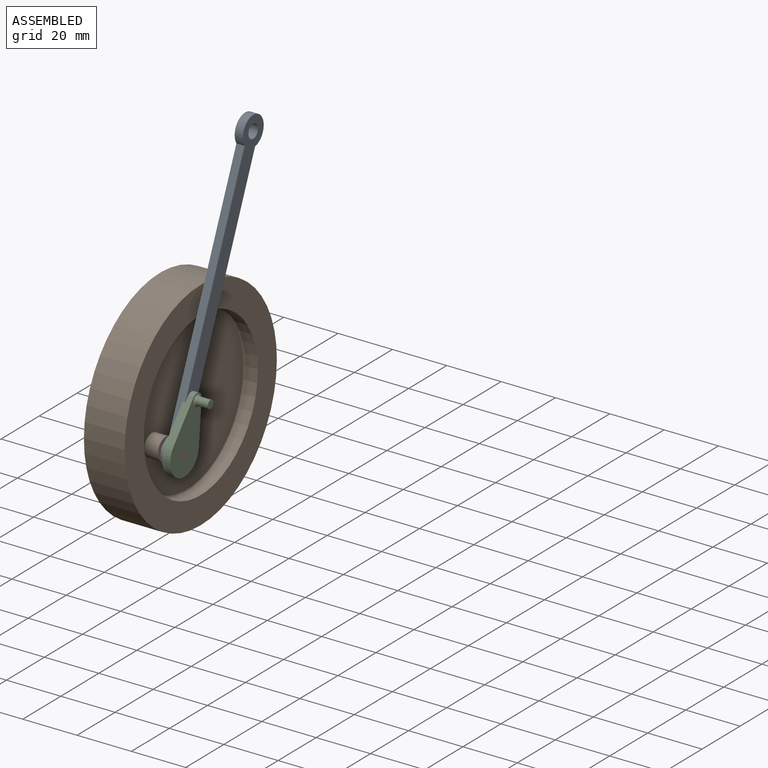
[diagram: assembled view]
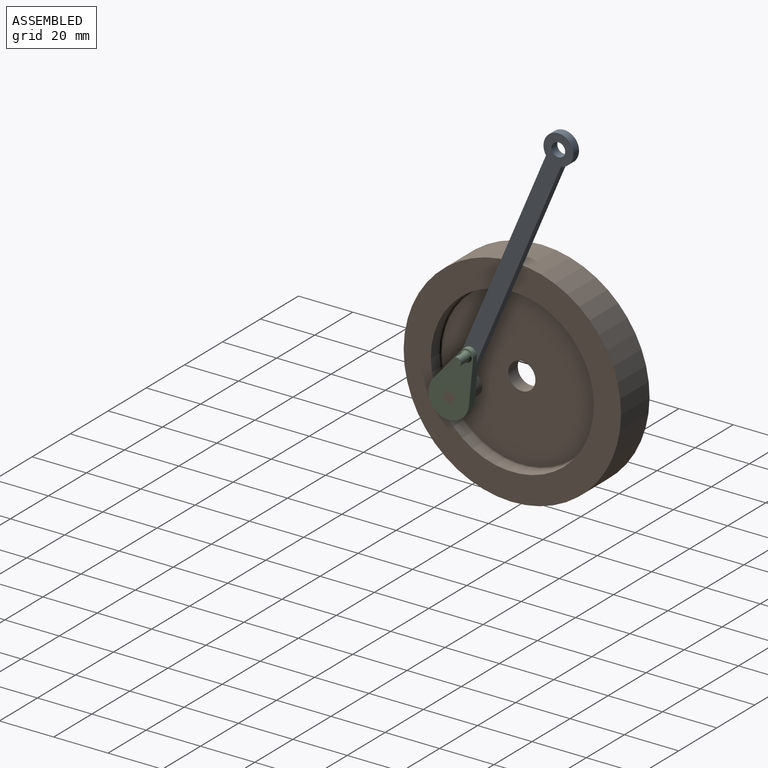
[diagram: assembled view, second angle]
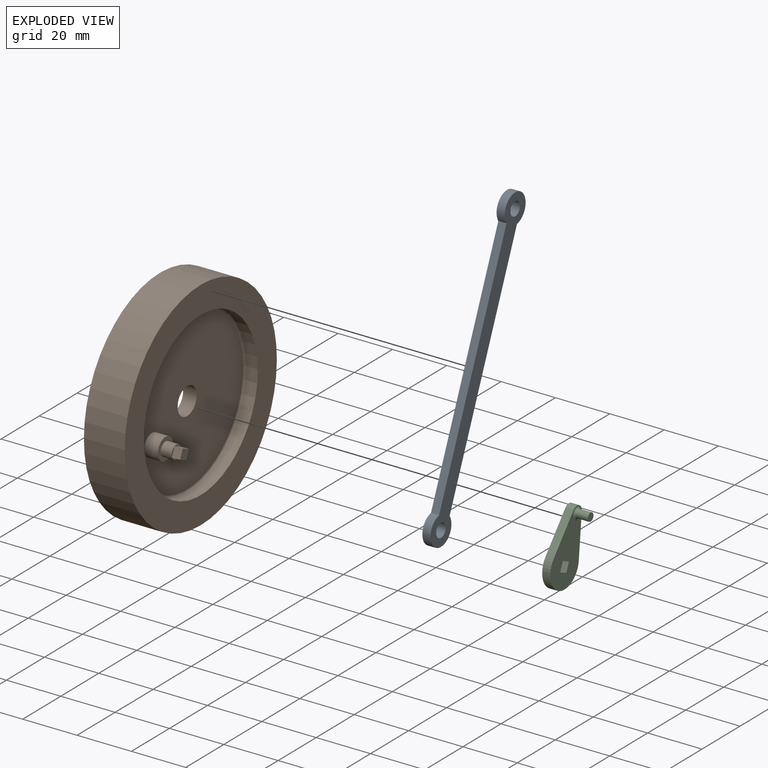
[diagram: exploded view]
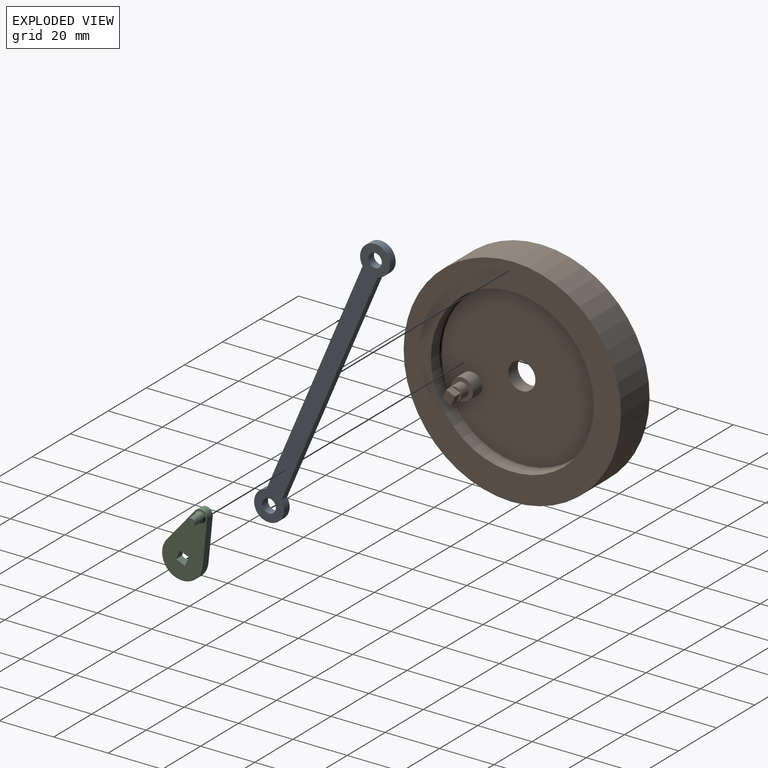
[diagram: exploded view, second angle]
ASSEMBLY  parts=3 mates=2
PART A: 8 faces, bbox 3x81.7x81.7 mm
  f0: plane 64.19x64.19mm, normal (0,-0.71,0.71), area 272.3mm2, adj f1,f3,f6,f7
  f1: cylinder r=5.5mm len=11mm, axis (-1,0,0), area 84.6mm2, adj f0,f2,f6,f7
  f2: plane 64.19x64.19mm, normal (0,0.71,-0.71), area 272.3mm2, adj f1,f3,f6,f7
  f3: cylinder r=5.5mm len=11mm, axis (-1,0,0), area 84.6mm2, adj f0,f2,f6,f7
  f4: cylinder r=2.5mm len=5mm, axis (-1,0,0), area 47.1mm2, adj f6,f7
  f5: cylinder r=2.5mm len=5mm, axis (-1,0,0), area 47.1mm2, adj f6,f7
  f6: plane 81.71x81.71mm, normal (1,0,0), area 688.2mm2, adj f0,f1,f2,f3,f4,f5
  f7: plane 81.71x81.71mm, normal (-1,0,0), area 688.2mm2, adj f0,f1,f2,f3,f4,f5
PART B: 25 faces, bbox 24x80x80 mm
  f0: cylinder r=30mm len=60mm, axis (-1,0,0), area 629mm2, adj f1,f8,f10
  f1: torus R=29.3mm, axis (1,0,0), area 160.2mm2, adj f0,f2,f10
  f2: plane 58.6x54.82mm, normal (-1,0,0), area 2407.6mm2, adj f1,f3,f10,f13
  f3: cylinder r=5mm len=10mm, axis (-1,0,0), area 157.1mm2, adj f2,f4
  f4: plane 58.6x58.6mm, normal (1,0,0), area 2568.2mm2, adj f3,f9,f12
  f5: cylinder r=30mm len=60mm, axis (-1,0,0), area 810.5mm2, adj f6,f9
  f6: plane 80x80mm, normal (1,0,0), area 2199.1mm2, adj f5,f7
  f7: cylinder r=40mm len=80mm, axis (-1,0,0), area 3769.9mm2, adj f6,f8
  f8: plane 80x80mm, normal (-1,0,0), area 2388.3mm2, adj f0,f7,f10
  f9: torus R=29.3mm, axis (-1,0,0), area 205.5mm2, adj f4,f5
  f10: plane 38.31x6.24mm, normal (0,-0.99,0.16), area 193.7mm2, adj f0,f1,f2,f8
  f11: plane 8x8mm, normal (1,0,0), area 30.6mm2, adj f12,f24
  f12: cylinder r=4mm len=8mm, axis (-1,0,0), area 125.7mm2, adj f4,f11
  f13: cylinder r=4mm len=8mm, axis (-1,0,0), area 175.9mm2, adj f2,f14
  f14: plane 8x8mm, normal (-1,0,0), area 50.3mm2, adj f13
  f15: plane 5x5mm, normal (1,0,0), area 12.5mm2, adj f16,f17,f18,f19
  f16: plane 3x2.5mm, normal (0,-0.71,0.71), area 10.6mm2, adj f15,f17,f19,f20
  f17: plane 3x2.5mm, normal (0,-0.71,-0.71), area 10.6mm2, adj f15,f16,f18,f21
  f18: plane 3x2.5mm, normal (0,0.71,-0.71), area 10.6mm2, adj f15,f17,f19,f22
  f19: plane 3x2.5mm, normal (0,0.71,0.71), area 10.6mm2, adj f15,f16,f18,f23
  f20: plane 2.5x2.5mm, normal (1,0,0), area 1.8mm2, adj f16,f24
  f21: plane 2.5x2.5mm, normal (1,0,0), area 1.8mm2, adj f17,f24
  f22: plane 2.5x2.5mm, normal (1,0,0), area 1.8mm2, adj f18,f24
  f23: plane 2.5x2.5mm, normal (1,0,0), area 1.8mm2, adj f19,f24
  f24: cylinder r=2.5mm len=5mm, axis (-1,0,0), area 62.8mm2, adj f11,f20,f21,f22,f23
PART C: 13 faces, bbox 8x22.3x22.3 mm
  f0: plane 14.18x7.43mm, normal (0,0.89,-0.46), area 48mm2, adj f1,f7,f8,f9
  f1: cylinder r=2.5mm len=3.66mm, axis (-1,0,0), area 19mm2, adj f0,f2,f8,f9
  f2: plane 14.18x7.43mm, normal (0,-0.46,0.89), area 48mm2, adj f1,f7,f8,f9
  f3: plane 3x2.5mm, normal (0,-0.71,-0.71), area 10.6mm2, adj f4,f6,f8,f9
  f4: plane 3x2.5mm, normal (0,-0.71,0.71), area 10.6mm2, adj f3,f5,f8,f9
  f5: plane 3x2.5mm, normal (0,0.71,0.71), area 10.6mm2, adj f4,f6,f8,f9
  f6: plane 3x2.5mm, normal (0,0.71,-0.71), area 10.6mm2, adj f3,f5,f8,f9
  f7: cylinder r=7.5mm len=14.14mm, axis (-1,0,0), area 84.3mm2, adj f0,f2,f8,f9
  f8: plane 21.86x21.86mm, normal (1,0,0), area 245.7mm2, adj f0,f1,f2,f3,f4,f5,f6,f7
  f9: plane 21.86x21.86mm, normal (-1,0,0), area 260.9mm2, adj f0,f1,f2,f3,f4,f5,f6,f7
  f10: cylinder r=1.5mm len=4.3mm, axis (-1,0,0), area 40.5mm2, adj f11,f12
  f11: plane 3x3mm, normal (1,0,0), area 7.1mm2, adj f10
  f12: torus R=2.2mm, axis (1,0,0), area 12.1mm2, adj f8,f10
PLACE A rot(axis=(1,0,0),22deg) t=(2,0,0)mm
PLACE B rot(axis=(1,0,0),22deg) t=(0,0,0)mm
PLACE C rot(axis=(1,0,0),22deg) t=(0,0,0)mm
MATE cylindrical B.f24 <-> A.f1  axis (-1,0,0) through (9.5,-18.54,-7.51)mm
MATE fastened B.f12 <-> C.f7  axis (1,0,0) through (14.5,-18.54,-7.51)mm
